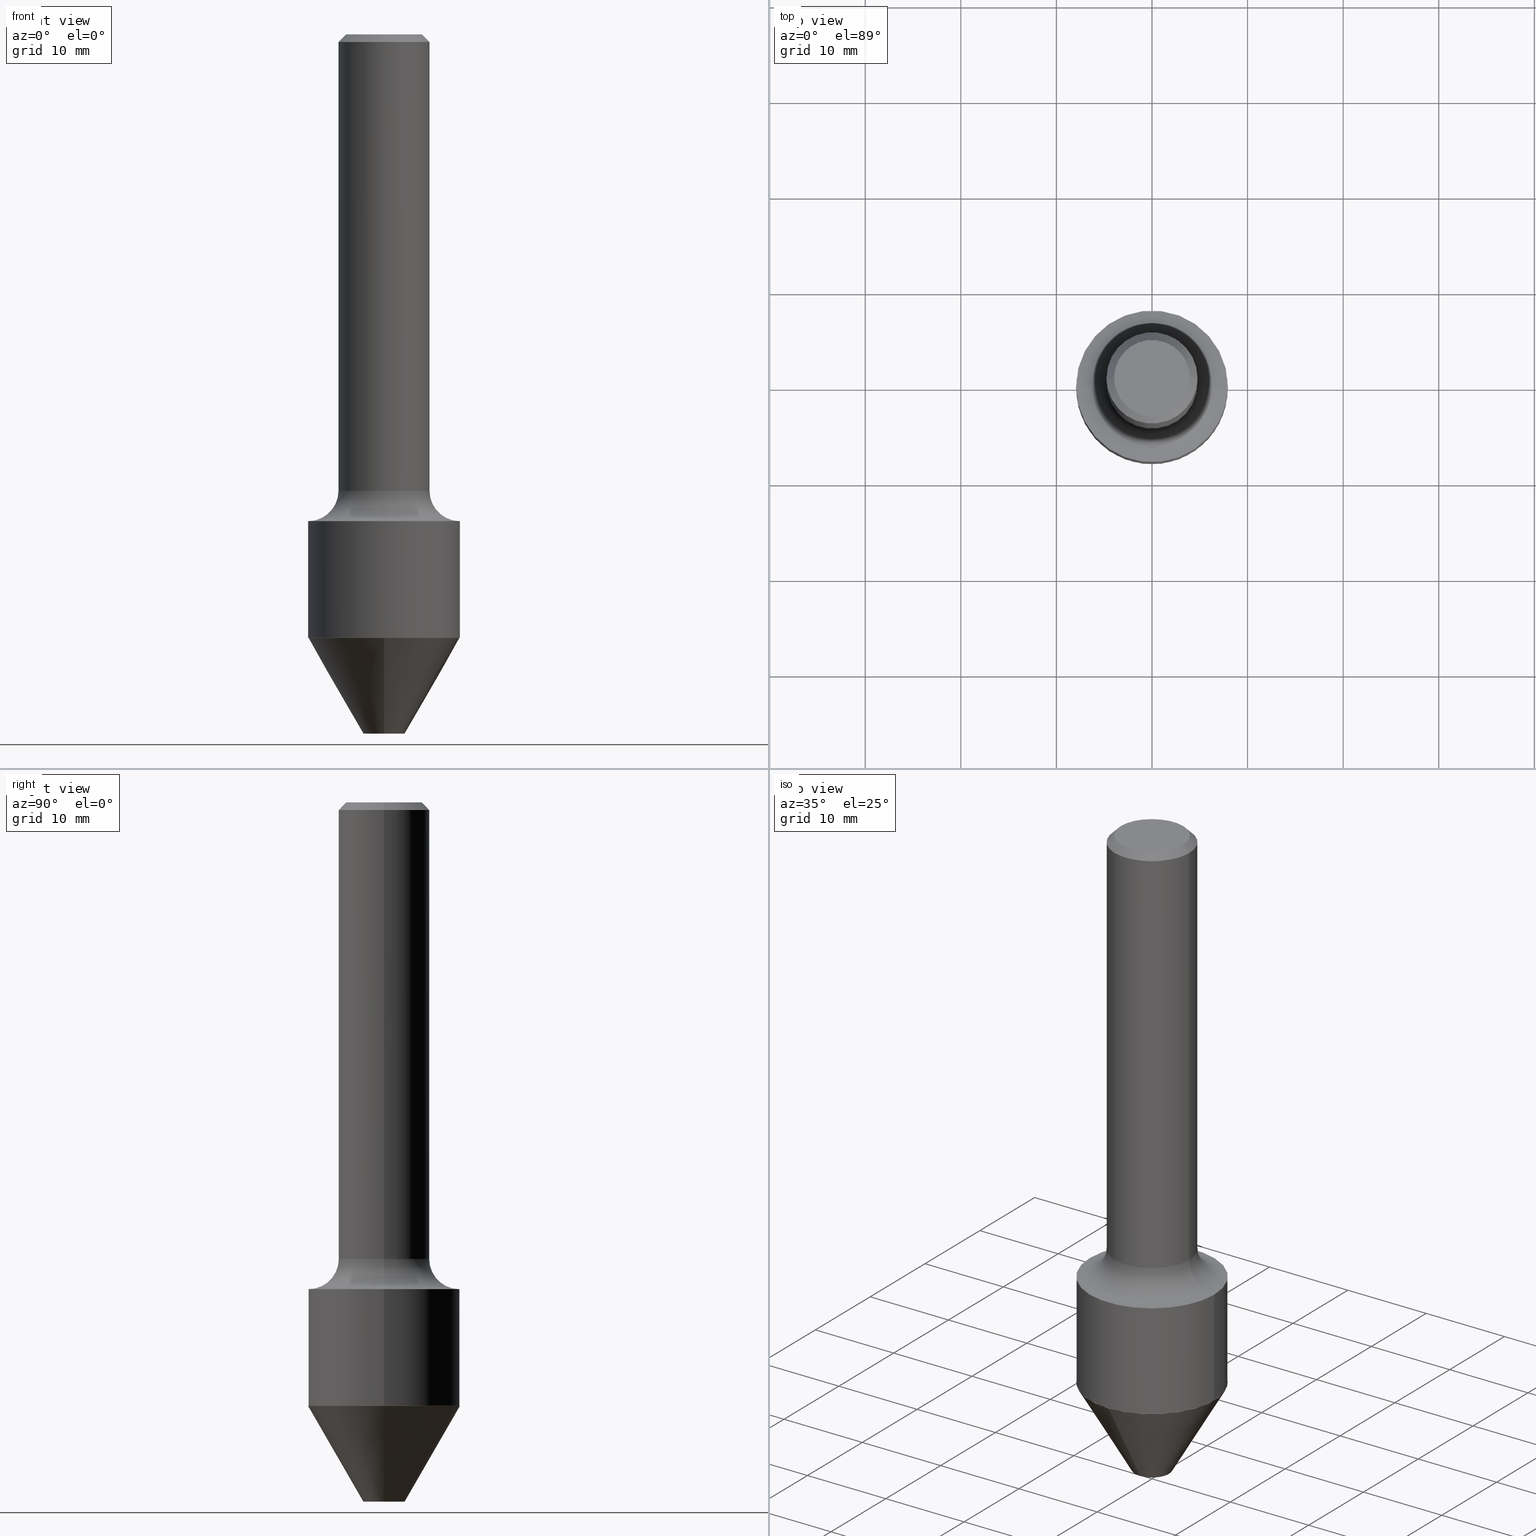
[diagram: canonical four-view strip — front | top / right | iso, engineering-drawing reading convention]
A machine part, canonical four-view strip (front | top / right | iso — engineering-drawing reading convention). The complete STEP part file that produces these views, byte-faithful:
ISO-10303-21;
HEADER;
FILE_DESCRIPTION (( 'STEP AP203' ),
    '1' );
FILE_NAME ('74164.STEP',
    '2025-06-20T12:29:19',
    ( '' ),
    ( '' ),
    'SwSTEP 2.0',
    'SolidWorks 2024',
    '' );
FILE_SCHEMA (( 'CONFIG_CONTROL_DESIGN' ));
ENDSEC;

DATA;
#1 = PLANE ( 'NONE',  #98 ) ;
#2 = DIRECTION ( 'NONE',  ( -2.445468806185136877E-29, 3.491481338843145188E-15, 1.000000000000000000 ) ) ;
#3 = CIRCLE ( 'NONE', #292, 0.3124999999999996669 ) ;
#4 = EDGE_CURVE ( 'NONE', #399, #507, #239, .T. ) ;
#5 = CIRCLE ( 'NONE', #480, 0.3125000000000000000 ) ;
#6 = DIRECTION ( 'NONE',  ( 6.982962677686265922E-15, 1.000000000000000000, -3.359441529305366298E-15 ) ) ;
#7 = APPLICATION_PROTOCOL_DEFINITION ( 'international standard', 'config_control_design', 1994, #314 ) ;
#8 = APPROVAL ( #155, 'UNSPECIFIED' ) ;
#9 = PLANE ( 'NONE',  #406 ) ;
#10 = PERSON_AND_ORGANIZATION ( #240, #174 ) ;
#11 = VERTEX_POINT ( 'NONE', #73 ) ;
#12 = CARTESIAN_POINT ( 'NONE',  ( 6.078111087215166728E-29, -8.677931766192716531E-15, -2.485458441278116659 ) ) ;
#13 = APPROVAL_STATUS ( 'not_yet_approved' ) ;
#14 = DIRECTION ( 'NONE',  ( 1.000000000000000000, -6.982962677686269077E-15, 0.000000000000000000 ) ) ;
#15 = APPROVAL_DATE_TIME ( #207, #247 ) ;
#16 = EDGE_LOOP ( 'NONE', ( #111, #430, #466, #209 ) ) ;
#17 = LINE ( 'NONE', #339, #382 ) ;
#18 = ADVANCED_FACE ( 'NONE', ( #322 ), #1, .T. ) ;
#19 = DIRECTION ( 'NONE',  ( -2.445468806185136597E-29, 3.491481338843145583E-15, 1.000000000000000000 ) ) ;
#20 = ORIENTED_EDGE ( 'NONE', *, *, #296, .F. ) ;
#21 = FACE_OUTER_BOUND ( 'NONE', #243, .T. ) ;
#22 = CIRCLE ( 'NONE', #275, 0.1249999999999996947 ) ;
#23 =( GEOMETRIC_REPRESENTATION_CONTEXT ( 3 ) GLOBAL_UNCERTAINTY_ASSIGNED_CONTEXT ( ( #116 ) ) GLOBAL_UNIT_ASSIGNED_CONTEXT ( ( #498, #129, #332 ) ) REPRESENTATION_CONTEXT ( 'NONE', 'WORKASPACE' ) );
#24 = CARTESIAN_POINT ( 'NONE',  ( 4.597481355628058013E-29, -6.563984917025115320E-15, -1.880000000000000338 ) ) ;
#25 = MANIFOLD_SOLID_BREP ( 'Body-Move/Copy2[2]', #359 ) ;
#26 = CC_DESIGN_DATE_AND_TIME_ASSIGNMENT ( #367, #326, ( #47 ) ) ;
#27 = FACE_OUTER_BOUND ( 'NONE', #191, .T. ) ;
#28 = ORIENTED_EDGE ( 'NONE', *, *, #288, .T. ) ;
#29 = FACE_OUTER_BOUND ( 'NONE', #16, .T. ) ;
#30 = VERTEX_POINT ( 'NONE', #113 ) ;
#31 = EDGE_CURVE ( 'NONE', #122, #309, #355, .T. ) ;
#32 = VERTEX_POINT ( 'NONE', #74 ) ;
#33 = CARTESIAN_POINT ( 'NONE',  ( 1.412203687323261313E-15, 0.08499999999998972267, -2.880000000000000782 ) ) ;
#34 = EDGE_LOOP ( 'NONE', ( #383, #136, #350, #404 ) ) ;
#35 = PRODUCT_DEFINITION ( 'UNKNOWN', '', #124, #402 ) ;
#36 = CARTESIAN_POINT ( 'NONE',  ( 2.220446049250371062E-15, 0.3124999999999909517, -2.485958441278118158 ) ) ;
#37 = ORIENTED_EDGE ( 'NONE', *, *, #142, .F. ) ;
#38 = FACE_OUTER_BOUND ( 'NONE', #278, .T. ) ;
#39 = DIRECTION ( 'NONE',  ( -2.537671712382247930E-29, 3.359441529305366298E-15, 1.000000000000000000 ) ) ;
#40 = DIRECTION ( 'NONE',  ( 1.000000000000000000, -6.982962677686266711E-15, 4.876176775795936353E-29 ) ) ;
#41 = LINE ( 'NONE', #357, #441 ) ;
#42 = CARTESIAN_POINT ( 'NONE',  ( 6.052675718444882355E-29, -8.717853427891421761E-15, -2.485958441278116826 ) ) ;
#43 = FACE_OUTER_BOUND ( 'NONE', #141, .T. ) ;
#44 = CONICAL_SURFACE ( 'NONE', #345, 0.3119999999999999996, 0.7853981633973118326 ) ;
#45 = CIRCLE ( 'NONE', #458, 0.3120000000000000551 ) ;
#46 = EDGE_CURVE ( 'NONE', #303, #507, #41, .T. ) ;
#47 = SECURITY_CLASSIFICATION ( '', '', #211 ) ;
#48 = CONICAL_SURFACE ( 'NONE', #215, 0.1875000000000000278, 0.7853981633974439491 ) ;
#49 = CALENDAR_DATE ( 2025, 20, 6 ) ;
#50 = DIRECTION ( 'NONE',  ( -0.7071067811864509833, 7.493145998870005484E-15, 0.7071067811866440511 ) ) ;
#51 = APPLICATION_PROTOCOL_DEFINITION ( 'international standard', 'config_control_design', 1994, #489 ) ;
#52 = CARTESIAN_POINT ( 'NONE',  ( -0.1563000000000000500, 1.145904175408315963E-15, 7.654042494663141351E-18 ) ) ;
#53 = COORDINATED_UNIVERSAL_TIME_OFFSET ( 5, 0, .BEHIND. ) ;
#54 = ORIENTED_EDGE ( 'NONE', *, *, #331, .F. ) ;
#55 = EDGE_CURVE ( 'NONE', #303, #427, #282, .T. ) ;
#56 = DIRECTION ( 'NONE',  ( 1.000000000000000000, -6.982962677686265922E-15, 4.876176775795935793E-29 ) ) ;
#57 = DIRECTION ( 'NONE',  ( 1.000000000000000000, 0.000000000000000000, 0.000000000000000000 ) ) ;
#58 = CYLINDRICAL_SURFACE ( 'NONE', #110, 0.3125000000000000000 ) ;
#59 = FACE_OUTER_BOUND ( 'NONE', #311, .T. ) ;
#60 = AXIS2_PLACEMENT_3D ( 'NONE', #100, #440, #151 ) ;
#61 = EDGE_CURVE ( 'NONE', #397, #392, #3, .T. ) ;
#62 = AXIS2_PLACEMENT_3D ( 'NONE', #219, #95, #86 ) ;
#63 = ORIENTED_EDGE ( 'NONE', *, *, #185, .F. ) ;
#64 = CARTESIAN_POINT ( 'NONE',  ( 1.091437066522363671E-15, 0.1563000000000000500, -5.418915120138483345E-16 ) ) ;
#65 = APPROVAL_DATE_TIME ( #267, #274 ) ;
#66 = VERTEX_POINT ( 'NONE', #76 ) ;
#67 = DIRECTION ( 'NONE',  ( -2.445468806185136597E-29, 3.491481338843145583E-15, 1.000000000000000000 ) ) ;
#68 = EDGE_LOOP ( 'NONE', ( #413, #389, #107, #273 ) ) ;
#69 = CARTESIAN_POINT ( 'NONE',  ( 0.1563000000000000500, -1.233786714702880152E-15, 7.654042494679095754E-18 ) ) ;
#70 = EDGE_LOOP ( 'NONE', ( #300, #72, #306, #90 ) ) ;
#71 = ADVANCED_FACE ( 'NONE', ( #196 ), #476, .T. ) ;
#72 = ORIENTED_EDGE ( 'NONE', *, *, #142, .T. ) ;
#73 = CARTESIAN_POINT ( 'NONE',  ( 2.180430096107596008E-15, 0.3119999999999912843, -2.485458441278117991 ) ) ;
#74 = CARTESIAN_POINT ( 'NONE',  ( 0.3125000000000000000, -1.085836186230025416E-14, -2.484958441278116492 ) ) ;
#75 = EDGE_CURVE ( 'NONE', #145, #392, #125, .T. ) ;
#76 = CARTESIAN_POINT ( 'NONE',  ( -0.3125000000000000000, -4.779974035130193909E-15, -2.004999999999999893 ) ) ;
#77 = DIRECTION ( 'NONE',  ( -6.982962677686265133E-15, -1.000000000000000000, 3.496765431890260469E-15 ) ) ;
#78 = DIRECTION ( 'NONE',  ( 4.937700262161850927E-15, 0.7071067811861588837, -0.7071067811869362618 ) ) ;
#79 = CARTESIAN_POINT ( 'NONE',  ( -0.3119999999999999996, -6.458389203447093937E-15, -2.485458441278116659 ) ) ;
#80 = CIRCLE ( 'NONE', #323, 0.1875000000000000278 ) ;
#81 = VECTOR ( 'NONE', #435, 39.37007874015748854 ) ;
#82 = AXIS2_PLACEMENT_3D ( 'NONE', #250, #373, #370 ) ;
#83 = APPROVAL_PERSON_ORGANIZATION ( #411, #247, #281 ) ;
#84 = DATE_AND_TIME ( #451, #277 ) ;
#85 = DIMENSIONAL_EXPONENTS ( 1.000000000000000000, 0.000000000000000000, 0.000000000000000000, 0.000000000000000000, 0.000000000000000000, 0.000000000000000000, 0.000000000000000000 ) ;
#86 = DIRECTION ( 'NONE',  ( -6.982962677686265922E-15, -1.000000000000000000, 6.427877632151226320E-15 ) ) ;
#87 = CALENDAR_DATE ( 2025, 20, 6 ) ;
#88 = CARTESIAN_POINT ( 'NONE',  ( 4.903164956401198966E-29, -7.000420084380507779E-15, -2.004999999999999893 ) ) ;
#89 = PERSON_AND_ORGANIZATION_ROLE ( 'creator' ) ;
#90 = ORIENTED_EDGE ( 'NONE', *, *, #164, .F. ) ;
#91 = AXIS2_PLACEMENT_3D ( 'NONE', #198, #283, #205 ) ;
#92 = DIRECTION ( 'NONE',  ( 0.7071067811864509833, -2.468850131081245741E-15, 0.7071067811866440511 ) ) ;
#93 = APPROVAL_ROLE ( '' ) ;
#94 = CARTESIAN_POINT ( 'NONE',  ( 6.078111087215166728E-29, -8.677931766192716531E-15, -2.485458441278116659 ) ) ;
#95 = DIRECTION ( 'NONE',  ( -2.537671712382247930E-29, 3.359441529305366298E-15, 1.000000000000000000 ) ) ;
#96 = DIRECTION ( 'NONE',  ( -2.445468806185136597E-29, 3.491481338843145583E-15, 1.000000000000000000 ) ) ;
#97 = CC_DESIGN_PERSON_AND_ORGANIZATION_ASSIGNMENT ( #10, #158, ( #456 ) ) ;
#98 = AXIS2_PLACEMENT_3D ( 'NONE', #447, #361, #481 ) ;
#99 = DIRECTION ( 'NONE',  ( -1.000000000000000000, 6.982962677686265922E-15, 0.000000000000000000 ) ) ;
#100 = CARTESIAN_POINT ( 'NONE',  ( 4.903164956401198966E-29, -7.000420084380507779E-15, -2.004999999999999893 ) ) ;
#101 = ORIENTED_EDGE ( 'NONE', *, *, #75, .F. ) ;
#102 = EDGE_CURVE ( 'NONE', #427, #66, #242, .T. ) ;
#103 = DIRECTION ( 'NONE',  ( -2.445468806185136597E-29, 3.491481338843145583E-15, 1.000000000000000000 ) ) ;
#104 = ORIENTED_EDGE ( 'NONE', *, *, #117, .F. ) ;
#105 = DIRECTION ( 'NONE',  ( 1.000000000000000000, -6.982962677686264344E-15, 0.000000000000000000 ) ) ;
#106 = CARTESIAN_POINT ( 'NONE',  ( 2.178684355438175688E-15, 0.3119999999999912843, -2.485458441278117991 ) ) ;
#107 = ORIENTED_EDGE ( 'NONE', *, *, #341, .T. ) ;
#108 = EDGE_LOOP ( 'NONE', ( #344, #183, #230, #509 ) ) ;
#109 = ADVANCED_FACE ( 'NONE', ( #132 ), #432, .T. ) ;
#110 = AXIS2_PLACEMENT_3D ( 'NONE', #377, #19, #170 ) ;
#111 = ORIENTED_EDGE ( 'NONE', *, *, #169, .T. ) ;
#112 = LOCAL_TIME ( 8, 29, 19.00000000000000000, #53 ) ;
#113 = CARTESIAN_POINT ( 'NONE',  ( -5.935518276032604305E-16, -0.08500000000000980382, -2.879999999999999893 ) ) ;
#114 = EDGE_CURVE ( 'NONE', #424, #303, #199, .T. ) ;
#115 = CIRCLE ( 'NONE', #130, 0.1875000000000002498 ) ;
#116 = UNCERTAINTY_MEASURE_WITH_UNIT (LENGTH_MEASURE( 1.000000000000000082E-05 ), #498, 'distance_accuracy_value', 'NONE');
#117 = EDGE_CURVE ( 'NONE', #216, #30, #501, .T. ) ;
#118 = PERSON_AND_ORGANIZATION ( #240, #174 ) ;
#119 = CARTESIAN_POINT ( 'NONE',  ( 6.052675718444882355E-29, -8.717853427891421761E-15, -2.485958441278116826 ) ) ;
#120 = AXIS2_PLACEMENT_3D ( 'NONE', #88, #256, #210 ) ;
#121 = ADVANCED_FACE ( 'NONE', ( #454 ), #165, .F. ) ;
#122 = VERTEX_POINT ( 'NONE', #52 ) ;
#123 = AXIS2_PLACEMENT_3D ( 'NONE', #290, #452, #56 ) ;
#124 = PRODUCT_DEFINITION_FORMATION_WITH_SPECIFIED_SOURCE ( 'ANY', '', #456, .NOT_KNOWN. ) ;
#125 = LINE ( 'NONE', #375, #127 ) ;
#126 = COORDINATED_UNIVERSAL_TIME_OFFSET ( 5, 0, .BEHIND. ) ;
#127 = VECTOR ( 'NONE', #330, 39.37007874015748143 ) ;
#128 = DIRECTION ( 'NONE',  ( 1.000000000000000000, -6.982962677686264344E-15, 0.000000000000000000 ) ) ;
#129 =( NAMED_UNIT ( * ) PLANE_ANGLE_UNIT ( ) SI_UNIT ( $, .RADIAN. ) );
#130 = AXIS2_PLACEMENT_3D ( 'NONE', #168, #508, #173 ) ;
#131 = VECTOR ( 'NONE', #150, 39.37007874015748143 ) ;
#132 = FACE_OUTER_BOUND ( 'NONE', #68, .T. ) ;
#133 = CC_DESIGN_SECURITY_CLASSIFICATION ( #47, ( #124 ) ) ;
#134 = DIRECTION ( 'NONE',  ( 1.000000000000000000, -6.982962677686265922E-15, 0.000000000000000000 ) ) ;
#135 = DIRECTION ( 'NONE',  ( -2.445468806185136597E-29, 3.491481338843145583E-15, 1.000000000000000000 ) ) ;
#136 = ORIENTED_EDGE ( 'NONE', *, *, #428, .T. ) ;
#137 = PLANE ( 'NONE',  #235 ) ;
#138 = ORIENTED_EDGE ( 'NONE', *, *, #102, .F. ) ;
#139 = DIRECTION ( 'NONE',  ( 1.000000000000000000, -6.982962677686265133E-15, 4.883557194083112340E-29 ) ) ;
#140 = CARTESIAN_POINT ( 'NONE',  ( -0.1875000000000002498, -5.005845661302559902E-15, -1.880000000000000338 ) ) ;
#141 = EDGE_LOOP ( 'NONE', ( #352, #462 ) ) ;
#142 = EDGE_CURVE ( 'NONE', #378, #188, #213, .T. ) ;
#143 = ORIENTED_EDGE ( 'NONE', *, *, #482, .T. ) ;
#144 = LINE ( 'NONE', #106, #222 ) ;
#145 = VERTEX_POINT ( 'NONE', #417 ) ;
#146 = CIRCLE ( 'NONE', #450, 0.1563000000000000500 ) ;
#147 = CC_DESIGN_APPROVAL ( #274, ( #47 ) ) ;
#148 = CC_DESIGN_PERSON_AND_ORGANIZATION_ASSIGNMENT ( #453, #490, ( #124 ) ) ;
#149 = ORIENTED_EDGE ( 'NONE', *, *, #313, .T. ) ;
#150 = DIRECTION ( 'NONE',  ( -2.445468806185136877E-29, 3.491481338843145188E-15, 1.000000000000000000 ) ) ;
#151 = DIRECTION ( 'NONE',  ( 1.000000000000000000, -6.982962677686269077E-15, 0.000000000000000000 ) ) ;
#152 = EDGE_CURVE ( 'NONE', #231, #378, #336, .T. ) ;
#153 = EDGE_CURVE ( 'NONE', #30, #392, #17, .T. ) ;
#154 = DIRECTION ( 'NONE',  ( -2.537671712382247930E-29, 3.359441529305366298E-15, 1.000000000000000000 ) ) ;
#155 = APPROVAL_STATUS ( 'not_yet_approved' ) ;
#156 = ADVANCED_FACE ( 'NONE', ( #21 ), #44, .T. ) ;
#157 = MECHANICAL_CONTEXT ( 'NONE', #314, 'mechanical' ) ;
#158 = PERSON_AND_ORGANIZATION_ROLE ( 'design_owner' ) ;
#159 = ORIENTED_EDGE ( 'NONE', *, *, #31, .T. ) ;
#160 = PRODUCT_RELATED_PRODUCT_CATEGORY ( 'detail', '', ( #456 ) ) ;
#161 = CARTESIAN_POINT ( 'NONE',  ( -0.1875000000000001110, 1.332267629550188637E-15, -9.223003294227953596E-30 ) ) ;
#162 = APPROVAL_ROLE ( '' ) ;
#163 = ORIENTED_EDGE ( 'NONE', *, *, #455, .F. ) ;
#164 = EDGE_CURVE ( 'NONE', #231, #32, #261, .T. ) ;
#165 = PLANE ( 'NONE',  #123 ) ;
#166 = DATE_AND_TIME ( #87, #470 ) ;
#167 = VECTOR ( 'NONE', #365, 39.37007874015748143 ) ;
#168 = CARTESIAN_POINT ( 'NONE',  ( 4.597481355628058013E-29, -6.563984917025115320E-15, -1.880000000000000338 ) ) ;
#169 = EDGE_CURVE ( 'NONE', #303, #424, #115, .T. ) ;
#170 = DIRECTION ( 'NONE',  ( 1.000000000000000000, -6.982962677686266711E-15, 4.876176775795936353E-29 ) ) ;
#171 = EDGE_LOOP ( 'NONE', ( #101, #20, #143, #469 ) ) ;
#172 = CIRCLE ( 'NONE', #431, 0.1563000000000000500 ) ;
#173 = DIRECTION ( 'NONE',  ( 1.000000000000000000, -6.982962677686269077E-15, 0.000000000000000000 ) ) ;
#174 = ORGANIZATION ( 'UNSPECIFIED', 'UNSPECIFIED', '' ) ;
#175 = CIRCLE ( 'NONE', #318, 0.08499999999999975631 ) ;
#176 = CARTESIAN_POINT ( 'NONE',  ( 0.000000000000000000, 0.000000000000000000, 0.000000000000000000 ) ) ;
#177 = ORIENTED_EDGE ( 'NONE', *, *, #260, .F. ) ;
#178 = CARTESIAN_POINT ( 'NONE',  ( -0.3125000000000000000, 2.220446049250313081E-15, -1.537167215704658232E-29 ) ) ;
#179 = CARTESIAN_POINT ( 'NONE',  ( -0.1875000000000000278, 1.200371284294268058E-15, -0.03120000000000022755 ) ) ;
#180 = ORIENTED_EDGE ( 'NONE', *, *, #448, .T. ) ;
#181 = CYLINDRICAL_SURFACE ( 'NONE', #189, 0.1875000000000001110 ) ;
#182 = CARTESIAN_POINT ( 'NONE',  ( 6.051406882588691352E-29, -8.716173707126767338E-15, -2.485458441278116659 ) ) ;
#183 = ORIENTED_EDGE ( 'NONE', *, *, #386, .T. ) ;
#184 = FACE_OUTER_BOUND ( 'NONE', #70, .T. ) ;
#185 = EDGE_CURVE ( 'NONE', #424, #309, #384, .T. ) ;
#186 = SHAPE_DEFINITION_REPRESENTATION ( #333, #474 ) ;
#187 = APPROVAL_PERSON_ORGANIZATION ( #118, #274, #162 ) ;
#188 = VERTEX_POINT ( 'NONE', #293 ) ;
#189 = AXIS2_PLACEMENT_3D ( 'NONE', #297, #221, #461 ) ;
#190 = DIRECTION ( 'NONE',  ( -6.982962677686265922E-15, -1.000000000000000000, 3.502369222646490578E-15 ) ) ;
#191 = EDGE_LOOP ( 'NONE', ( #396, #287, #138, #511 ) ) ;
#192 = EDGE_CURVE ( 'NONE', #309, #507, #80, .T. ) ;
#193 = MANIFOLD_SOLID_BREP ( 'Body-Move/Copy2[1]', #368 ) ;
#194 = ADVANCED_FACE ( 'NONE', ( #59 ), #48, .T. ) ;
#195 = DIRECTION ( 'NONE',  ( -2.537671712382247930E-29, 3.359441529305366298E-15, 1.000000000000000000 ) ) ;
#196 = FACE_OUTER_BOUND ( 'NONE', #512, .T. ) ;
#197 = ADVANCED_FACE ( 'NONE', ( #263 ), #487, .F. ) ;
#198 = CARTESIAN_POINT ( 'NONE',  ( 6.076888352812073926E-29, -8.676186025523294239E-15, -2.484958441278116492 ) ) ;
#199 = CIRCLE ( 'NONE', #420, 0.1875000000000002498 ) ;
#200 = CARTESIAN_POINT ( 'NONE',  ( 6.078111087215166728E-29, -8.677931766192716531E-15, -2.485458441278116659 ) ) ;
#201 = CARTESIAN_POINT ( 'NONE',  ( 7.629862675297681829E-31, -1.089342177719069380E-16, -0.03120000000000022755 ) ) ;
#202 = CARTESIAN_POINT ( 'NONE',  ( 0.1875000000000000278, -1.395277592354069315E-15, -0.03120000000000022755 ) ) ;
#203 =( LENGTH_UNIT ( ) NAMED_UNIT ( * ) SI_UNIT ( $, .METRE. ) );
#204 = CIRCLE ( 'NONE', #517, 0.3119999999999999996 ) ;
#205 = DIRECTION ( 'NONE',  ( 1.000000000000000000, -6.982962677686269077E-15, 0.000000000000000000 ) ) ;
#206 = LINE ( 'NONE', #178, #224 ) ;
#207 = DATE_AND_TIME ( #49, #372 ) ;
#208 = ADVANCED_FACE ( 'NONE', ( #223 ), #137, .F. ) ;
#209 = ORIENTED_EDGE ( 'NONE', *, *, #46, .F. ) ;
#210 = DIRECTION ( 'NONE',  ( 1.000000000000000000, -6.982962677686269077E-15, 0.000000000000000000 ) ) ;
#211 = SECURITY_CLASSIFICATION_LEVEL ( 'unclassified' ) ;
#212 = ADVANCED_FACE ( 'NONE', ( #184 ), #366, .T. ) ;
#213 = LINE ( 'NONE', #414, #276 ) ;
#214 = PERSON_AND_ORGANIZATION_ROLE ( 'classification_officer' ) ;
#215 = AXIS2_PLACEMENT_3D ( 'NONE', #465, #499, #99 ) ;
#216 = VERTEX_POINT ( 'NONE', #33 ) ;
#217 = PERSON_AND_ORGANIZATION ( #240, #174 ) ;
#218 = ORIENTED_EDGE ( 'NONE', *, *, #494, .F. ) ;
#219 = CARTESIAN_POINT ( 'NONE',  ( 7.052623835516415266E-29, -1.004161300453393599E-14, -2.880000000000000338 ) ) ;
#220 = ADVANCED_FACE ( 'NONE', ( #471 ), #279, .F. ) ;
#221 = DIRECTION ( 'NONE',  ( -2.445468806185136597E-29, 3.491481338843145583E-15, 1.000000000000000000 ) ) ;
#222 = VECTOR ( 'NONE', #78, 39.37007874015748143 ) ;
#223 = FACE_OUTER_BOUND ( 'NONE', #225, .T. ) ;
#224 = VECTOR ( 'NONE', #390, 39.37007874015748143 ) ;
#225 = EDGE_LOOP ( 'NONE', ( #493, #28 ) ) ;
#226 = CARTESIAN_POINT ( 'NONE',  ( 4.597481355628058013E-29, -6.563984917025115320E-15, -1.880000000000000338 ) ) ;
#227 = COORDINATED_UNIVERSAL_TIME_OFFSET ( 5, 0, .BEHIND. ) ;
#228 = CARTESIAN_POINT ( 'NONE',  ( -1.871772216193331159E-46, 2.672394653685611172E-32, 7.654042494670965249E-18 ) ) ;
#229 = DIRECTION ( 'NONE',  ( -2.445468806185136597E-29, 3.491481338843145583E-15, 1.000000000000000000 ) ) ;
#230 = ORIENTED_EDGE ( 'NONE', *, *, #331, .T. ) ;
#231 = VERTEX_POINT ( 'NONE', #388 ) ;
#232 = AXIS2_PLACEMENT_3D ( 'NONE', #176, #236, #40 ) ;
#233 = DIRECTION ( 'NONE',  ( -6.982962677686265133E-15, -1.000000000000000000, 3.496765431890260469E-15 ) ) ;
#234 = ORIENTED_EDGE ( 'NONE', *, *, #169, .F. ) ;
#235 = AXIS2_PLACEMENT_3D ( 'NONE', #64, #304, #342 ) ;
#236 = DIRECTION ( 'NONE',  ( -2.445468806185136597E-29, 3.491481338843145583E-15, 1.000000000000000000 ) ) ;
#237 = ORIENTED_EDGE ( 'NONE', *, *, #4, .F. ) ;
#238 = DIRECTION ( 'NONE',  ( -2.537671712382247930E-29, 3.359441529305366298E-15, 1.000000000000000000 ) ) ;
#239 = LINE ( 'NONE', #202, #167 ) ;
#240 = PERSON ( 'UNSPECIFIED', 'UNSPECIFIED', 'UNSPECIFIED', ('UNSPECIFIED'), ('UNSPECIFIED'), ('UNSPECIFIED') ) ;
#241 = ADVANCED_FACE ( 'NONE', ( #510 ), #308, .T. ) ;
#242 = CIRCLE ( 'NONE', #120, 0.3125000000000000000 ) ;
#243 = EDGE_LOOP ( 'NONE', ( #37, #473, #284, #298 ) ) ;
#244 = AXIS2_PLACEMENT_3D ( 'NONE', #119, #446, #77 ) ;
#245 = AXIS2_PLACEMENT_3D ( 'NONE', #201, #444, #134 ) ;
#246 = CONICAL_SURFACE ( 'NONE', #244, 0.3124999999999996669, 0.5235987755983383396 ) ;
#247 = APPROVAL ( #415, 'UNSPECIFIED' ) ;
#248 = COORDINATED_UNIVERSAL_TIME_OFFSET ( 5, 0, .BEHIND. ) ;
#249 = DIRECTION ( 'NONE',  ( -6.982962677686265133E-15, -1.000000000000000000, 3.496765431890260469E-15 ) ) ;
#250 = CARTESIAN_POINT ( 'NONE',  ( 6.078111087215166728E-29, -8.677931766192716531E-15, -2.485458441278116659 ) ) ;
#251 = ADVANCED_FACE ( 'NONE', ( #29 ), #181, .T. ) ;
#252 = PERSON_AND_ORGANIZATION ( #240, #174 ) ;
#253 = DIRECTION ( 'NONE',  ( -1.000000000000000000, 6.982962677686265922E-15, 0.000000000000000000 ) ) ;
#254 = COORDINATED_UNIVERSAL_TIME_OFFSET ( 5, 0, .BEHIND. ) ;
#255 = ORIENTED_EDGE ( 'NONE', *, *, #386, .F. ) ;
#256 = DIRECTION ( 'NONE',  ( -2.445468806185136597E-29, 3.491481338843145583E-15, 1.000000000000000000 ) ) ;
#257 = PERSON_AND_ORGANIZATION ( #240, #174 ) ;
#258 = CARTESIAN_POINT ( 'NONE',  ( -2.182175836776895238E-15, -0.3125000000000084377, -2.485958441278115938 ) ) ;
#259 = DIRECTION ( 'NONE',  ( 1.000000000000000000, -6.982962677686264344E-15, 0.000000000000000000 ) ) ;
#260 = EDGE_CURVE ( 'NONE', #378, #231, #204, .T. ) ;
#261 = LINE ( 'NONE', #299, #468 ) ;
#262 = CYLINDRICAL_SURFACE ( 'NONE', #232, 0.3125000000000000000 ) ;
#263 = FACE_OUTER_BOUND ( 'NONE', #108, .T. ) ;
#264 = ORIENTED_EDGE ( 'NONE', *, *, #61, .F. ) ;
#265 = ORIENTED_EDGE ( 'NONE', *, *, #288, .F. ) ;
#266 = DIRECTION ( 'NONE',  ( -2.445468806185136597E-29, 3.491481338843145583E-15, 1.000000000000000000 ) ) ;
#267 = DATE_AND_TIME ( #385, #422 ) ;
#268 = DIRECTION ( 'NONE',  ( 1.000000000000000000, -6.982962677686266711E-15, 4.876046809215620980E-29 ) ) ;
#269 = ORIENTED_EDGE ( 'NONE', *, *, #192, .T. ) ;
#270 = CARTESIAN_POINT ( 'NONE',  ( 0.000000000000000000, 0.000000000000000000, 0.000000000000000000 ) ) ;
#271 = CARTESIAN_POINT ( 'NONE',  ( 6.052675718444882355E-29, -8.717853427891421761E-15, -2.485958441278116826 ) ) ;
#272 = EDGE_LOOP ( 'NONE', ( #340, #104 ) ) ;
#273 = ORIENTED_EDGE ( 'NONE', *, *, #482, .F. ) ;
#274 = APPROVAL ( #13, 'UNSPECIFIED' ) ;
#275 = AXIS2_PLACEMENT_3D ( 'NONE', #491, #464, #305 ) ;
#276 = VECTOR ( 'NONE', #50, 39.37007874015748143 ) ;
#277 = LOCAL_TIME ( 8, 29, 19.00000000000000000, #126 ) ;
#278 = EDGE_LOOP ( 'NONE', ( #514, #387, #327, #264 ) ) ;
#279 = TOROIDAL_SURFACE ( 'NONE', #504, 0.3125000000000000000, 0.1249999999999996947 ) ;
#280 = AXIS2_PLACEMENT_3D ( 'NONE', #24, #67, #139 ) ;
#281 = APPROVAL_ROLE ( '' ) ;
#282 = CIRCLE ( 'NONE', #484, 0.1249999999999996947 ) ;
#283 = DIRECTION ( 'NONE',  ( -2.445468806185136597E-29, 3.491481338843145583E-15, 1.000000000000000000 ) ) ;
#284 = ORIENTED_EDGE ( 'NONE', *, *, #164, .T. ) ;
#285 = LENGTH_MEASURE_WITH_UNIT ( LENGTH_MEASURE( 0.02539999999999999897 ), #203 );
#286 = CIRCLE ( 'NONE', #393, 0.3124999999999996669 ) ;
#287 = ORIENTED_EDGE ( 'NONE', *, *, #494, .T. ) ;
#288 = EDGE_CURVE ( 'NONE', #399, #122, #172, .T. ) ;
#289 = DATE_TIME_ROLE ( 'creation_date' ) ;
#290 = CARTESIAN_POINT ( 'NONE',  ( 6.078111087215166728E-29, -8.677931766192716531E-15, -2.485458441278116659 ) ) ;
#291 = FACE_OUTER_BOUND ( 'NONE', #325, .T. ) ;
#292 = AXIS2_PLACEMENT_3D ( 'NONE', #42, #39, #321 ) ;
#293 = CARTESIAN_POINT ( 'NONE',  ( -0.3125000000000000000, -5.617857005701588322E-15, -2.484958441278116492 ) ) ;
#294 = DIRECTION ( 'NONE',  ( 0.000000000000000000, 0.000000000000000000, 1.000000000000000000 ) ) ;
#295 = CONICAL_SURFACE ( 'NONE', #353, 0.3124999999999996669, 0.5235987755983383396 ) ;
#296 = EDGE_CURVE ( 'NONE', #11, #145, #362, .T. ) ;
#297 = CARTESIAN_POINT ( 'NONE',  ( 0.000000000000000000, 0.000000000000000000, 0.000000000000000000 ) ) ;
#298 = ORIENTED_EDGE ( 'NONE', *, *, #313, .F. ) ;
#299 = CARTESIAN_POINT ( 'NONE',  ( 0.3119999999999999996, -1.085661612163083187E-14, -2.485458441278116659 ) ) ;
#300 = ORIENTED_EDGE ( 'NONE', *, *, #152, .T. ) ;
#301 = DIRECTION ( 'NONE',  ( 6.982962677686265922E-15, 1.000000000000000000, -3.502369222646490578E-15 ) ) ;
#302 = DIRECTION ( 'NONE',  ( 1.000000000000000000, -6.982962677686269077E-15, 0.000000000000000000 ) ) ;
#303 = VERTEX_POINT ( 'NONE', #416 ) ;
#304 = DIRECTION ( 'NONE',  ( 2.438088387897960049E-29, -3.491481338843145188E-15, -1.000000000000000000 ) ) ;
#305 = DIRECTION ( 'NONE',  ( -1.000000000000000000, 7.105427357601001859E-15, 0.000000000000000000 ) ) ;
#306 = ORIENTED_EDGE ( 'NONE', *, *, #358, .F. ) ;
#307 = ADVANCED_FACE ( 'NONE', ( #27 ), #58, .T. ) ;
#308 = CYLINDRICAL_SURFACE ( 'NONE', #436, 0.1875000000000001110 ) ;
#309 = VERTEX_POINT ( 'NONE', #179 ) ;
#310 = CC_DESIGN_PERSON_AND_ORGANIZATION_ASSIGNMENT ( #217, #324, ( #124 ) ) ;
#311 = EDGE_LOOP ( 'NONE', ( #237, #163, #159, #269 ) ) ;
#312 = ORIENTED_EDGE ( 'NONE', *, *, #114, .T. ) ;
#313 = EDGE_CURVE ( 'NONE', #188, #32, #5, .T. ) ;
#314 = APPLICATION_CONTEXT ( 'configuration controlled 3d designs of mechanical parts and assemblies' ) ;
#315 = CIRCLE ( 'NONE', #91, 0.3125000000000000000 ) ;
#316 = APPROVAL_PERSON_ORGANIZATION ( #376, #8, #93 ) ;
#317 = FACE_OUTER_BOUND ( 'NONE', #171, .T. ) ;
#318 = AXIS2_PLACEMENT_3D ( 'NONE', #356, #154, #407 ) ;
#319 = DIRECTION ( 'NONE',  ( -2.445468806185136597E-29, 3.491481338843145583E-15, 1.000000000000000000 ) ) ;
#320 = CARTESIAN_POINT ( 'NONE',  ( -0.1875000000000000278, 1.200371284294268058E-15, -0.03120000000000022755 ) ) ;
#321 = DIRECTION ( 'NONE',  ( -6.982962677686265133E-15, -1.000000000000000000, 3.496765431890260469E-15 ) ) ;
#322 = FACE_OUTER_BOUND ( 'NONE', #272, .T. ) ;
#323 = AXIS2_PLACEMENT_3D ( 'NONE', #457, #334, #419 ) ;
#324 = PERSON_AND_ORGANIZATION_ROLE ( 'design_supplier' ) ;
#325 = EDGE_LOOP ( 'NONE', ( #218, #149, #180, #54 ) ) ;
#326 = DATE_TIME_ROLE ( 'classification_date' ) ;
#327 = ORIENTED_EDGE ( 'NONE', *, *, #153, .T. ) ;
#328 = DIRECTION ( 'NONE',  ( -2.445468806185136877E-29, 3.491481338843145188E-15, 1.000000000000000000 ) ) ;
#329 = EDGE_LOOP ( 'NONE', ( #369, #177 ) ) ;
#330 = DIRECTION ( 'NONE',  ( -4.851104656538312913E-15, -0.7071067811861635466, -0.7071067811869315989 ) ) ;
#331 = EDGE_CURVE ( 'NONE', #66, #427, #479, .T. ) ;
#332 =( NAMED_UNIT ( * ) SI_UNIT ( $, .STERADIAN. ) SOLID_ANGLE_UNIT ( ) );
#333 = PRODUCT_DEFINITION_SHAPE ( 'NONE', 'NONE',  #35 ) ;
#334 = DIRECTION ( 'NONE',  ( -2.445468806185136597E-29, 3.491481338843145583E-15, 1.000000000000000000 ) ) ;
#335 = AXIS2_PLACEMENT_3D ( 'NONE', #426, #401, #348 ) ;
#336 = CIRCLE ( 'NONE', #82, 0.3119999999999999996 ) ;
#337 = EDGE_CURVE ( 'NONE', #30, #216, #175, .T. ) ;
#338 = ORIENTED_EDGE ( 'NONE', *, *, #55, .T. ) ;
#339 = CARTESIAN_POINT ( 'NONE',  ( -2.182175836776895238E-15, -0.3125000000000084377, -2.485958441278115938 ) ) ;
#340 = ORIENTED_EDGE ( 'NONE', *, *, #337, .F. ) ;
#341 = EDGE_CURVE ( 'NONE', #392, #397, #286, .T. ) ;
#342 = DIRECTION ( 'NONE',  ( -1.000000000000000000, 6.982962677686265922E-15, -4.876176775795935793E-29 ) ) ;
#343 = DIRECTION ( 'NONE',  ( -6.982962677686265922E-15, -1.000000000000000000, 3.502369222646490578E-15 ) ) ;
#344 = ORIENTED_EDGE ( 'NONE', *, *, #114, .F. ) ;
#345 = AXIS2_PLACEMENT_3D ( 'NONE', #12, #497, #128 ) ;
#346 = AXIS2_PLACEMENT_3D ( 'NONE', #425, #103, #105 ) ;
#347 = ORIENTED_EDGE ( 'NONE', *, *, #192, .F. ) ;
#348 = DIRECTION ( 'NONE',  ( 6.982962677686265922E-15, 1.000000000000000000, -3.502369222646490578E-15 ) ) ;
#349 = ADVANCED_FACE ( 'NONE', ( #360 ), #246, .T. ) ;
#350 = ORIENTED_EDGE ( 'NONE', *, *, #341, .F. ) ;
#351 = DIRECTION ( 'NONE',  ( -2.537671712382247930E-29, 3.359441529305366298E-15, 1.000000000000000000 ) ) ;
#352 = ORIENTED_EDGE ( 'NONE', *, *, #296, .T. ) ;
#353 = AXIS2_PLACEMENT_3D ( 'NONE', #271, #351, #233 ) ;
#354 = LINE ( 'NONE', #472, #131 ) ;
#355 = LINE ( 'NONE', #320, #515 ) ;
#356 = CARTESIAN_POINT ( 'NONE',  ( 7.052623835516415266E-29, -1.004161300453393599E-14, -2.880000000000000338 ) ) ;
#357 = CARTESIAN_POINT ( 'NONE',  ( 0.1875000000000001110, -1.309305502066175797E-15, 9.142831454617385217E-30 ) ) ;
#358 = EDGE_CURVE ( 'NONE', #32, #188, #315, .T. ) ;
#359 = CLOSED_SHELL ( 'NONE', ( #251, #71, #212, #307, #197, #220, #394, #156, #121, #208, #194, #241 ) ) ;
#360 = FACE_OUTER_BOUND ( 'NONE', #34, .T. ) ;
#361 = DIRECTION ( 'NONE',  ( 2.537671712382247930E-29, -3.359441529305366298E-15, -1.000000000000000000 ) ) ;
#362 = CIRCLE ( 'NONE', #500, 0.3120000000000000551 ) ;
#363 = CC_DESIGN_DATE_AND_TIME_ASSIGNMENT ( #166, #289, ( #35 ) ) ;
#364 = DIRECTION ( 'NONE',  ( 2.537671712382247930E-29, -3.359441529305366298E-15, -1.000000000000000000 ) ) ;
#365 = DIRECTION ( 'NONE',  ( 0.7071067811865444641, -7.319954787623245001E-15, -0.7071067811865505703 ) ) ;
#366 = CONICAL_SURFACE ( 'NONE', #346, 0.3119999999999999996, 0.7853981633973118326 ) ;
#367 = DATE_AND_TIME ( #371, #112 ) ;
#368 = CLOSED_SHELL ( 'NONE', ( #109, #349, #486, #18, #405, #443 ) ) ;
#369 = ORIENTED_EDGE ( 'NONE', *, *, #152, .F. ) ;
#370 = DIRECTION ( 'NONE',  ( 1.000000000000000000, -6.982962677686264344E-15, 0.000000000000000000 ) ) ;
#371 = CALENDAR_DATE ( 2025, 20, 6 ) ;
#372 = LOCAL_TIME ( 8, 29, 19.00000000000000000, #248 ) ;
#373 = DIRECTION ( 'NONE',  ( -2.445468806185136597E-29, 3.491481338843145583E-15, 1.000000000000000000 ) ) ;
#374 = ORIENTED_EDGE ( 'NONE', *, *, #502, .T. ) ;
#375 = CARTESIAN_POINT ( 'NONE',  ( -2.140475375304657755E-15, -0.3120000000000087703, -2.485458441278115771 ) ) ;
#376 = PERSON_AND_ORGANIZATION ( #240, #174 ) ;
#377 = CARTESIAN_POINT ( 'NONE',  ( 0.000000000000000000, 0.000000000000000000, 0.000000000000000000 ) ) ;
#378 = VERTEX_POINT ( 'NONE', #79 ) ;
#379 = DIRECTION ( 'NONE',  ( -3.491481338843393285E-15, -0.5000000000000313083, 0.8660254037844206110 ) ) ;
#380 = CONICAL_SURFACE ( 'NONE', #335, 0.3120000000000000551, 0.7853981633969019382 ) ;
#381 = CARTESIAN_POINT ( 'NONE',  ( -1.871772216193331159E-46, 2.672394653685611172E-32, 7.654042494670965249E-18 ) ) ;
#382 = VECTOR ( 'NONE', #379, 39.37007874015748143 ) ;
#383 = ORIENTED_EDGE ( 'NONE', *, *, #337, .T. ) ;
#384 = LINE ( 'NONE', #161, #478 ) ;
#385 = CALENDAR_DATE ( 2025, 20, 6 ) ;
#386 = EDGE_CURVE ( 'NONE', #424, #66, #22, .T. ) ;
#387 = ORIENTED_EDGE ( 'NONE', *, *, #117, .T. ) ;
#388 = CARTESIAN_POINT ( 'NONE',  ( 0.3119999999999999996, -1.085661612163083187E-14, -2.485458441278116659 ) ) ;
#389 = ORIENTED_EDGE ( 'NONE', *, *, #75, .T. ) ;
#390 = DIRECTION ( 'NONE',  ( -2.445468806185136877E-29, 3.491481338843145188E-15, 1.000000000000000000 ) ) ;
#391 = DIRECTION ( 'NONE',  ( 1.000000000000000000, -6.982962677686266711E-15, 4.876176775795935793E-29 ) ) ;
#392 = VERTEX_POINT ( 'NONE', #258 ) ;
#393 = AXIS2_PLACEMENT_3D ( 'NONE', #403, #195, #249 ) ;
#394 = ADVANCED_FACE ( 'NONE', ( #291 ), #262, .T. ) ;
#395 = LINE ( 'NONE', #36, #81 ) ;
#396 = ORIENTED_EDGE ( 'NONE', *, *, #358, .T. ) ;
#397 = VERTEX_POINT ( 'NONE', #398 ) ;
#398 = CARTESIAN_POINT ( 'NONE',  ( 2.220446049250371062E-15, 0.3124999999999909517, -2.485958441278118158 ) ) ;
#399 = VERTEX_POINT ( 'NONE', #69 ) ;
#400 = CARTESIAN_POINT ( 'NONE',  ( 7.629862675297681829E-31, -1.089342177719069380E-16, -0.03120000000000022755 ) ) ;
#401 = DIRECTION ( 'NONE',  ( 2.537671712382247930E-29, -3.359441529305366298E-15, -1.000000000000000000 ) ) ;
#402 = DESIGN_CONTEXT ( 'detailed design', #489, 'design' ) ;
#403 = CARTESIAN_POINT ( 'NONE',  ( 6.052675718444882355E-29, -8.717853427891421761E-15, -2.485958441278116826 ) ) ;
#404 = ORIENTED_EDGE ( 'NONE', *, *, #153, .F. ) ;
#405 = ADVANCED_FACE ( 'NONE', ( #38 ), #295, .T. ) ;
#406 = AXIS2_PLACEMENT_3D ( 'NONE', #200, #364, #6 ) ;
#407 = DIRECTION ( 'NONE',  ( -6.982962677686265922E-15, -1.000000000000000000, 6.427877632151226320E-15 ) ) ;
#408 = CC_DESIGN_APPROVAL ( #8, ( #35 ) ) ;
#409 = CARTESIAN_POINT ( 'NONE',  ( 4.597481355628058013E-29, -6.563984917025115320E-15, -1.880000000000000338 ) ) ;
#410 = DIRECTION ( 'NONE',  ( 2.537671712382247930E-29, -3.359441529305366298E-15, -1.000000000000000000 ) ) ;
#411 = PERSON_AND_ORGANIZATION ( #240, #174 ) ;
#412 = CC_DESIGN_APPROVAL ( #247, ( #124 ) ) ;
#413 = ORIENTED_EDGE ( 'NONE', *, *, #438, .F. ) ;
#414 = CARTESIAN_POINT ( 'NONE',  ( -0.3119999999999999996, -6.461038430621204349E-15, -2.485458441278116659 ) ) ;
#415 = APPROVAL_STATUS ( 'not_yet_approved' ) ;
#416 = CARTESIAN_POINT ( 'NONE',  ( 0.1875000000000002498, -7.873290419091291906E-15, -1.880000000000000338 ) ) ;
#417 = CARTESIAN_POINT ( 'NONE',  ( -2.142190499804099130E-15, -0.3120000000000087703, -2.485458441278115771 ) ) ;
#418 = DIRECTION ( 'NONE',  ( -2.537671712382247930E-29, 3.359441529305366298E-15, 1.000000000000000000 ) ) ;
#419 = DIRECTION ( 'NONE',  ( 1.000000000000000000, -6.982962677686265922E-15, 0.000000000000000000 ) ) ;
#420 = AXIS2_PLACEMENT_3D ( 'NONE', #409, #495, #14 ) ;
#421 = EDGE_LOOP ( 'NONE', ( #255, #234, #338, #442 ) ) ;
#422 = LOCAL_TIME ( 8, 29, 19.00000000000000000, #227 ) ;
#423 = DIRECTION ( 'NONE',  ( -2.445468806185136597E-29, 3.491481338843145583E-15, 1.000000000000000000 ) ) ;
#424 = VERTEX_POINT ( 'NONE', #140 ) ;
#425 = CARTESIAN_POINT ( 'NONE',  ( 6.078111087215166728E-29, -8.677931766192716531E-15, -2.485458441278116659 ) ) ;
#426 = CARTESIAN_POINT ( 'NONE',  ( 6.051406882588691352E-29, -8.716173707126767338E-15, -2.485458441278116659 ) ) ;
#427 = VERTEX_POINT ( 'NONE', #439 ) ;
#428 = EDGE_CURVE ( 'NONE', #216, #397, #395, .T. ) ;
#429 = AXIS2_PLACEMENT_3D ( 'NONE', #400, #463, #253 ) ;
#430 = ORIENTED_EDGE ( 'NONE', *, *, #185, .T. ) ;
#431 = AXIS2_PLACEMENT_3D ( 'NONE', #381, #96, #268 ) ;
#432 = CONICAL_SURFACE ( 'NONE', #518, 0.3120000000000000551, 0.7853981633969019382 ) ;
#433 = ORIENTED_EDGE ( 'NONE', *, *, #4, .T. ) ;
#434 = CIRCLE ( 'NONE', #245, 0.1875000000000000278 ) ;
#435 = DIRECTION ( 'NONE',  ( 3.552713678800720233E-15, 0.5000000000000369704, 0.8660254037844171693 ) ) ;
#436 = AXIS2_PLACEMENT_3D ( 'NONE', #270, #423, #391 ) ;
#437 = ORIENTED_EDGE ( 'NONE', *, *, #31, .F. ) ;
#438 = EDGE_CURVE ( 'NONE', #145, #11, #45, .T. ) ;
#439 = CARTESIAN_POINT ( 'NONE',  ( 0.3125000000000000000, -9.182595921157466915E-15, -2.004999999999999893 ) ) ;
#440 = DIRECTION ( 'NONE',  ( -2.445468806185136597E-29, 3.491481338843145583E-15, 1.000000000000000000 ) ) ;
#441 = VECTOR ( 'NONE', #2, 39.37007874015748143 ) ;
#442 = ORIENTED_EDGE ( 'NONE', *, *, #102, .T. ) ;
#443 = ADVANCED_FACE ( 'NONE', ( #317 ), #380, .T. ) ;
#444 = DIRECTION ( 'NONE',  ( -2.445468806185136597E-29, 3.491481338843145583E-15, 1.000000000000000000 ) ) ;
#445 = DIRECTION ( 'NONE',  ( 1.000000000000000000, -6.982962677686265133E-15, 0.000000000000000000 ) ) ;
#446 = DIRECTION ( 'NONE',  ( -2.537671712382247930E-29, 3.359441529305366298E-15, 1.000000000000000000 ) ) ;
#447 = CARTESIAN_POINT ( 'NONE',  ( -5.884111163576132504E-29, -2.856775383646374375E-14, -2.879999999999999893 ) ) ;
#448 = EDGE_CURVE ( 'NONE', #32, #427, #354, .T. ) ;
#449 = CARTESIAN_POINT ( 'NONE',  ( 0.3125000000000000000, -8.746160753802073667E-15, -1.880000000000000338 ) ) ;
#450 = AXIS2_PLACEMENT_3D ( 'NONE', #228, #319, #513 ) ;
#451 = CALENDAR_DATE ( 2025, 20, 6 ) ;
#452 = DIRECTION ( 'NONE',  ( -2.438088387897960049E-29, 3.491481338843145188E-15, 1.000000000000000000 ) ) ;
#453 = PERSON_AND_ORGANIZATION ( #240, #174 ) ;
#454 = FACE_OUTER_BOUND ( 'NONE', #329, .T. ) ;
#455 = EDGE_CURVE ( 'NONE', #122, #399, #146, .T. ) ;
#456 = PRODUCT ( '74164', '74164', '', ( #157 ) ) ;
#457 = CARTESIAN_POINT ( 'NONE',  ( 7.629862675297681829E-31, -1.089342177719069380E-16, -0.03120000000000022755 ) ) ;
#458 = AXIS2_PLACEMENT_3D ( 'NONE', #516, #238, #190 ) ;
#459 = APPROVAL_DATE_TIME ( #84, #8 ) ;
#460 = CC_DESIGN_PERSON_AND_ORGANIZATION_ASSIGNMENT ( #257, #89, ( #35 ) ) ;
#461 = DIRECTION ( 'NONE',  ( 1.000000000000000000, -6.982962677686266711E-15, 4.876176775795935793E-29 ) ) ;
#462 = ORIENTED_EDGE ( 'NONE', *, *, #438, .T. ) ;
#463 = DIRECTION ( 'NONE',  ( 2.445468806185136597E-29, -3.491481338843145583E-15, -1.000000000000000000 ) ) ;
#464 = DIRECTION ( 'NONE',  ( 7.105427357601001859E-15, 1.000000000000000000, -3.491481338843145583E-15 ) ) ;
#465 = CARTESIAN_POINT ( 'NONE',  ( 7.629862675297681829E-31, -1.089342177719069380E-16, -0.03120000000000022755 ) ) ;
#466 = ORIENTED_EDGE ( 'NONE', *, *, #502, .F. ) ;
#467 = DIRECTION ( 'NONE',  ( 1.000000000000000000, -6.982962677686265133E-15, 4.883557194083112340E-29 ) ) ;
#468 = VECTOR ( 'NONE', #92, 39.37007874015748143 ) ;
#469 = ORIENTED_EDGE ( 'NONE', *, *, #61, .T. ) ;
#470 = LOCAL_TIME ( 8, 29, 19.00000000000000000, #254 ) ;
#471 = FACE_OUTER_BOUND ( 'NONE', #421, .T. ) ;
#472 = CARTESIAN_POINT ( 'NONE',  ( 0.3125000000000000000, -2.182175836776958347E-15, 1.523805242436230075E-29 ) ) ;
#473 = ORIENTED_EDGE ( 'NONE', *, *, #260, .T. ) ;
#474 = ADVANCED_BREP_SHAPE_REPRESENTATION ( '74164', ( #193, #25, #503 ), #23 ) ;
#475 = ORIENTED_EDGE ( 'NONE', *, *, #46, .T. ) ;
#476 = CONICAL_SURFACE ( 'NONE', #429, 0.1875000000000000278, 0.7853981633974439491 ) ;
#477 = EDGE_LOOP ( 'NONE', ( #63, #312, #475, #347 ) ) ;
#478 = VECTOR ( 'NONE', #328, 39.37007874015748143 ) ;
#479 = CIRCLE ( 'NONE', #60, 0.3125000000000000000 ) ;
#480 = AXIS2_PLACEMENT_3D ( 'NONE', #506, #135, #302 ) ;
#481 = DIRECTION ( 'NONE',  ( 6.982962677686265922E-15, 1.000000000000000000, -3.359441529305366298E-15 ) ) ;
#482 = EDGE_CURVE ( 'NONE', #11, #397, #144, .T. ) ;
#483 = DIRECTION ( 'NONE',  ( -0.7071067811865444641, 2.468850131082224717E-15, -0.7071067811865505703 ) ) ;
#484 = AXIS2_PLACEMENT_3D ( 'NONE', #449, #488, #445 ) ;
#485 = CARTESIAN_POINT ( 'NONE',  ( 0.1875000000000000278, -1.395277592354069315E-15, -0.03120000000000022755 ) ) ;
#486 = ADVANCED_FACE ( 'NONE', ( #43 ), #9, .F. ) ;
#487 = TOROIDAL_SURFACE ( 'NONE', #280, 0.3125000000000000000, 0.1249999999999996947 ) ;
#488 = DIRECTION ( 'NONE',  ( -6.982962677686266711E-15, -1.000000000000000000, 3.491481338843145583E-15 ) ) ;
#489 = APPLICATION_CONTEXT ( 'configuration controlled 3d designs of mechanical parts and assemblies' ) ;
#490 = PERSON_AND_ORGANIZATION_ROLE ( 'creator' ) ;
#491 = CARTESIAN_POINT ( 'NONE',  ( -0.3125000000000000000, -4.343538867774801451E-15, -1.880000000000000338 ) ) ;
#492 = CC_DESIGN_PERSON_AND_ORGANIZATION_ASSIGNMENT ( #252, #214, ( #47 ) ) ;
#493 = ORIENTED_EDGE ( 'NONE', *, *, #455, .T. ) ;
#494 = EDGE_CURVE ( 'NONE', #188, #66, #206, .T. ) ;
#495 = DIRECTION ( 'NONE',  ( -2.445468806185136597E-29, 3.491481338843145583E-15, 1.000000000000000000 ) ) ;
#496 = CARTESIAN_POINT ( 'NONE',  ( 0.000000000000000000, 0.000000000000000000, 0.000000000000000000 ) ) ;
#497 = DIRECTION ( 'NONE',  ( -2.445468806185136597E-29, 3.491481338843145583E-15, 1.000000000000000000 ) ) ;
#498 =( CONVERSION_BASED_UNIT ( 'INCH', #285 ) LENGTH_UNIT ( ) NAMED_UNIT ( #85 ) );
#499 = DIRECTION ( 'NONE',  ( 2.445468806185136597E-29, -3.491481338843145583E-15, -1.000000000000000000 ) ) ;
#500 = AXIS2_PLACEMENT_3D ( 'NONE', #182, #418, #343 ) ;
#501 = CIRCLE ( 'NONE', #62, 0.08499999999999975631 ) ;
#502 = EDGE_CURVE ( 'NONE', #507, #309, #434, .T. ) ;
#503 = AXIS2_PLACEMENT_3D ( 'NONE', #496, #294, #57 ) ;
#504 = AXIS2_PLACEMENT_3D ( 'NONE', #226, #266, #467 ) ;
#505 = CARTESIAN_POINT ( 'NONE',  ( 6.051406882588691352E-29, -8.716173707126767338E-15, -2.485458441278116659 ) ) ;
#506 = CARTESIAN_POINT ( 'NONE',  ( 6.076888352812073926E-29, -8.676186025523294239E-15, -2.484958441278116492 ) ) ;
#507 = VERTEX_POINT ( 'NONE', #485 ) ;
#508 = DIRECTION ( 'NONE',  ( -2.445468806185136597E-29, 3.491481338843145583E-15, 1.000000000000000000 ) ) ;
#509 = ORIENTED_EDGE ( 'NONE', *, *, #55, .F. ) ;
#510 = FACE_OUTER_BOUND ( 'NONE', #477, .T. ) ;
#511 = ORIENTED_EDGE ( 'NONE', *, *, #448, .F. ) ;
#512 = EDGE_LOOP ( 'NONE', ( #265, #433, #374, #437 ) ) ;
#513 = DIRECTION ( 'NONE',  ( 1.000000000000000000, -6.982962677686266711E-15, 4.876046809215620980E-29 ) ) ;
#514 = ORIENTED_EDGE ( 'NONE', *, *, #428, .F. ) ;
#515 = VECTOR ( 'NONE', #483, 39.37007874015748143 ) ;
#516 = CARTESIAN_POINT ( 'NONE',  ( 6.051406882588691352E-29, -8.716173707126767338E-15, -2.485458441278116659 ) ) ;
#517 = AXIS2_PLACEMENT_3D ( 'NONE', #94, #229, #259 ) ;
#518 = AXIS2_PLACEMENT_3D ( 'NONE', #505, #410, #301 ) ;
ENDSEC;
END-ISO-10303-21;
